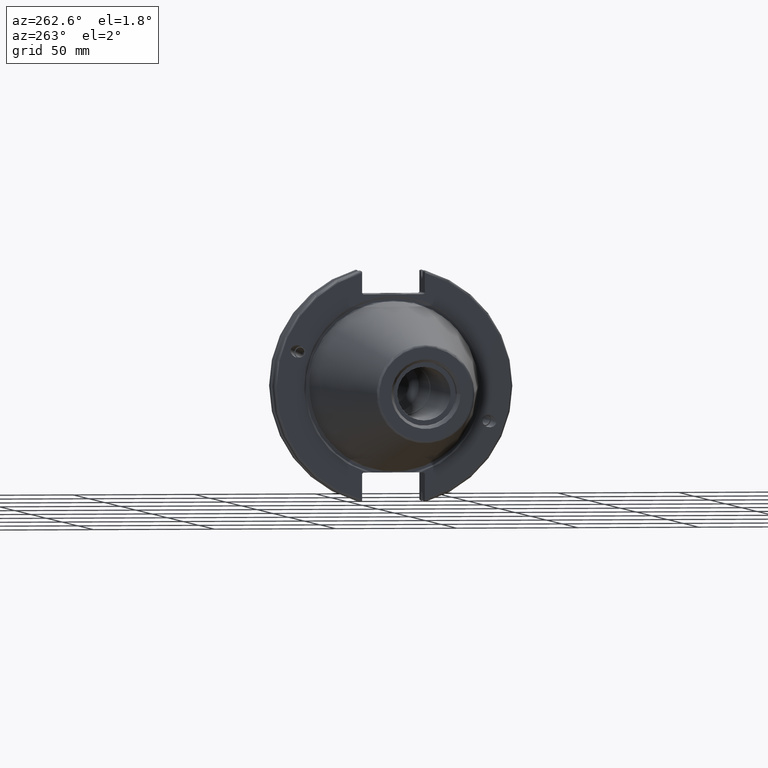
[diagram: clean part render]
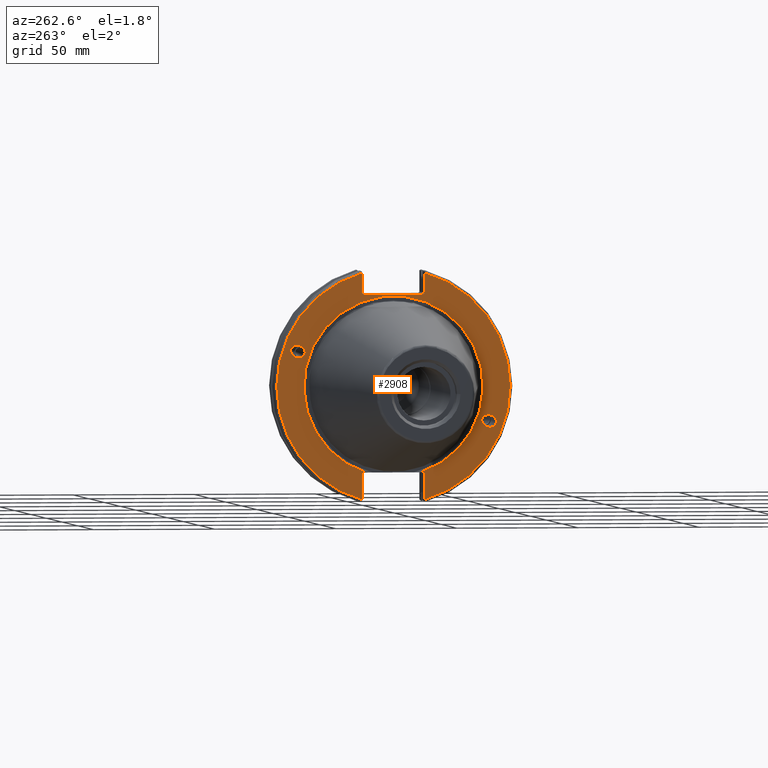
[diagram: same view with one face highlighted and labeled with its STEP entity id]
A machine part, auxiliary view. The second image highlights one B-rep face of the part: STEP entity #2908.
In plain terms, the highlighted planar face has unit normal (-1, 0, 0).
Its self-contained STEP definition (entity closure, byte-faithful):
#52=ELLIPSE('',#3153,3.05193647190365,2.50000000000001);
#53=ELLIPSE('',#3188,3.05193647190365,2.50000000000001);
#227=LINE('',#5006,#423);
#230=LINE('',#5056,#426);
#238=LINE('',#5092,#434);
#242=LINE('',#5160,#438);
#243=LINE('',#5162,#439);
#244=LINE('',#5164,#440);
#245=LINE('',#5165,#441);
#246=LINE('',#5167,#442);
#247=LINE('',#5169,#443);
#248=LINE('',#5173,#444);
#249=LINE('',#5174,#445);
#423=VECTOR('',#3707,10.);
#426=VECTOR('',#3716,10.);
#434=VECTOR('',#3726,10.);
#438=VECTOR('',#3752,10.);
#439=VECTOR('',#3753,10.);
#440=VECTOR('',#3754,10.);
#441=VECTOR('',#3755,10.);
#442=VECTOR('',#3756,10.);
#443=VECTOR('',#3757,10.);
#444=VECTOR('',#3760,10.);
#445=VECTOR('',#3761,10.);
#617=FACE_BOUND('',#922,.T.);
#618=FACE_BOUND('',#923,.T.);
#644=PLANE('',#3211);
#744=FACE_OUTER_BOUND('',#921,.T.);
#921=EDGE_LOOP('',(#2262,#2263,#2264,#2265,#2266,#2267,#2268,#2269,#2270,
#2271,#2272,#2273,#2274,#2275));
#922=EDGE_LOOP('',(#2276));
#923=EDGE_LOOP('',(#2277));
#1104=CIRCLE('',#3203,48.2125);
#1107=CIRCLE('',#3210,48.2125);
#1108=CIRCLE('',#3212,37.);
#1258=VERTEX_POINT('',#4685);
#1297=VERTEX_POINT('',#4949);
#1306=VERTEX_POINT('',#5003);
#1307=VERTEX_POINT('',#5005);
#1313=VERTEX_POINT('',#5053);
#1314=VERTEX_POINT('',#5055);
#1322=VERTEX_POINT('',#5084);
#1323=VERTEX_POINT('',#5091);
#1331=VERTEX_POINT('',#5150);
#1332=VERTEX_POINT('',#5159);
#1333=VERTEX_POINT('',#5161);
#1334=VERTEX_POINT('',#5163);
#1335=VERTEX_POINT('',#5166);
#1336=VERTEX_POINT('',#5168);
#1337=VERTEX_POINT('',#5170);
#1338=VERTEX_POINT('',#5172);
#1577=EDGE_CURVE('',#1258,#1258,#52,.T.);
#1630=EDGE_CURVE('',#1297,#1297,#53,.T.);
#1644=EDGE_CURVE('',#1307,#1306,#227,.T.);
#1654=EDGE_CURVE('',#1314,#1313,#230,.T.);
#1666=EDGE_CURVE('',#1323,#1322,#238,.T.);
#1671=EDGE_CURVE('',#1314,#1322,#1104,.T.);
#1680=EDGE_CURVE('',#1307,#1331,#1107,.T.);
#1682=EDGE_CURVE('',#1332,#1313,#242,.T.);
#1683=EDGE_CURVE('',#1332,#1333,#243,.T.);
#1684=EDGE_CURVE('',#1334,#1333,#244,.T.);
#1685=EDGE_CURVE('',#1334,#1331,#245,.T.);
#1686=EDGE_CURVE('',#1335,#1306,#246,.T.);
#1687=EDGE_CURVE('',#1335,#1336,#247,.T.);
#1688=EDGE_CURVE('',#1336,#1337,#1108,.T.);
#1689=EDGE_CURVE('',#1337,#1338,#248,.T.);
#1690=EDGE_CURVE('',#1323,#1338,#249,.T.);
#2262=ORIENTED_EDGE('',*,*,#1671,.F.);
#2263=ORIENTED_EDGE('',*,*,#1654,.T.);
#2264=ORIENTED_EDGE('',*,*,#1682,.F.);
#2265=ORIENTED_EDGE('',*,*,#1683,.T.);
#2266=ORIENTED_EDGE('',*,*,#1684,.F.);
#2267=ORIENTED_EDGE('',*,*,#1685,.T.);
#2268=ORIENTED_EDGE('',*,*,#1680,.F.);
#2269=ORIENTED_EDGE('',*,*,#1644,.T.);
#2270=ORIENTED_EDGE('',*,*,#1686,.F.);
#2271=ORIENTED_EDGE('',*,*,#1687,.T.);
#2272=ORIENTED_EDGE('',*,*,#1688,.T.);
#2273=ORIENTED_EDGE('',*,*,#1689,.T.);
#2274=ORIENTED_EDGE('',*,*,#1690,.F.);
#2275=ORIENTED_EDGE('',*,*,#1666,.T.);
#2276=ORIENTED_EDGE('',*,*,#1577,.T.);
#2277=ORIENTED_EDGE('',*,*,#1630,.T.);
#2908=ADVANCED_FACE('',(#744,#617,#618),#644,.T.);
#3153=AXIS2_PLACEMENT_3D('',#4687,#3598,#3599);
#3188=AXIS2_PLACEMENT_3D('',#4951,#3684,#3685);
#3203=AXIS2_PLACEMENT_3D('',#5114,#3732,#3733);
#3210=AXIS2_PLACEMENT_3D('',#5151,#3748,#3749);
#3211=AXIS2_PLACEMENT_3D('',#5158,#3750,#3751);
#3212=AXIS2_PLACEMENT_3D('',#5171,#3758,#3759);
#3598=DIRECTION('center_axis',(1.,0.,0.));
#3599=DIRECTION('ref_axis',(0.,-0.939692620785909,-0.342020143325667));
#3684=DIRECTION('center_axis',(1.,0.,0.));
#3685=DIRECTION('ref_axis',(0.,0.939692620785909,0.342020143325667));
#3707=DIRECTION('',(0.,0.,1.));
#3716=DIRECTION('',(0.,0.,-1.));
#3726=DIRECTION('',(0.,0.,-1.));
#3732=DIRECTION('center_axis',(1.,0.,0.));
#3733=DIRECTION('ref_axis',(0.,-1.,1.60812264967664E-16));
#3748=DIRECTION('center_axis',(1.,0.,0.));
#3749=DIRECTION('ref_axis',(0.,1.,-6.12323399573677E-17));
#3750=DIRECTION('center_axis',(-1.,0.,0.));
#3751=DIRECTION('ref_axis',(0.,0.,1.));
#3752=DIRECTION('',(0.,-0.707106781186549,0.707106781186546));
#3753=DIRECTION('',(0.,1.,0.));
#3754=DIRECTION('',(0.,-0.707106781186549,-0.707106781186546));
#3755=DIRECTION('',(0.,0.,1.));
#3756=DIRECTION('',(0.,0.707106781186548,-0.707106781186548));
#3757=DIRECTION('',(0.,-1.,0.));
#3758=DIRECTION('center_axis',(1.,0.,0.));
#3759=DIRECTION('ref_axis',(0.,0.,-1.));
#3760=DIRECTION('',(0.,-1.,0.));
#3761=DIRECTION('',(0.,0.707106781186549,0.707106781186546));
#4685=CARTESIAN_POINT('',(1.5,-36.5992078912529,-13.3210222701368));
#4687=CARTESIAN_POINT('Origin',(1.5,-39.4670900730082,-14.3648460196781));
#4949=CARTESIAN_POINT('',(1.5,36.5992078912529,13.3210222701368));
#4951=CARTESIAN_POINT('Origin',(1.5,39.4670900730082,14.3648460196781));
#5003=CARTESIAN_POINT('',(1.5,12.95,-35.806));
#5005=CARTESIAN_POINT('',(1.5,12.95,-46.4407434937254));
#5006=CARTESIAN_POINT('',(1.5,12.95,-17.653));
#5053=CARTESIAN_POINT('',(1.5,-12.95,38.219));
#5055=CARTESIAN_POINT('',(1.5,-12.95,46.4407434937254));
#5056=CARTESIAN_POINT('',(1.5,-12.95,18.8595));
#5084=CARTESIAN_POINT('',(1.5,-12.95,-46.4407434937254));
#5091=CARTESIAN_POINT('',(1.5,-12.95,-35.806));
#5092=CARTESIAN_POINT('',(1.5,-12.95,-17.653));
#5114=CARTESIAN_POINT('Origin',(1.5,0.,0.));
#5150=CARTESIAN_POINT('',(1.5,12.95,46.4407434937254));
#5151=CARTESIAN_POINT('Origin',(1.5,0.,0.));
#5158=CARTESIAN_POINT('Origin',(1.5,49.2125,0.));
#5159=CARTESIAN_POINT('',(1.5,-12.45,37.719));
#5160=CARTESIAN_POINT('',(1.5,12.2703750000001,12.998625));
#5161=CARTESIAN_POINT('',(1.5,12.45,37.719));
#5162=CARTESIAN_POINT('',(1.5,24.60625,37.719));
#5163=CARTESIAN_POINT('',(1.5,12.95,38.219));
#5164=CARTESIAN_POINT('',(1.5,12.335875,37.604875));
#5165=CARTESIAN_POINT('',(1.5,12.95,18.8595));
#5166=CARTESIAN_POINT('',(1.5,12.45,-35.306));
#5167=CARTESIAN_POINT('',(1.5,12.939125,-35.795125));
#5168=CARTESIAN_POINT('',(1.49999999999999,11.0673557817575,-35.306));
#5169=CARTESIAN_POINT('',(1.5,24.60625,-35.306));
#5170=CARTESIAN_POINT('',(1.5,-11.0673557817575,-35.306));
#5171=CARTESIAN_POINT('Origin',(1.5,0.,0.));
#5172=CARTESIAN_POINT('',(1.5,-12.45,-35.306));
#5173=CARTESIAN_POINT('',(1.5,24.60625,-35.306));
#5174=CARTESIAN_POINT('',(1.5,11.6671250000001,-11.188875));